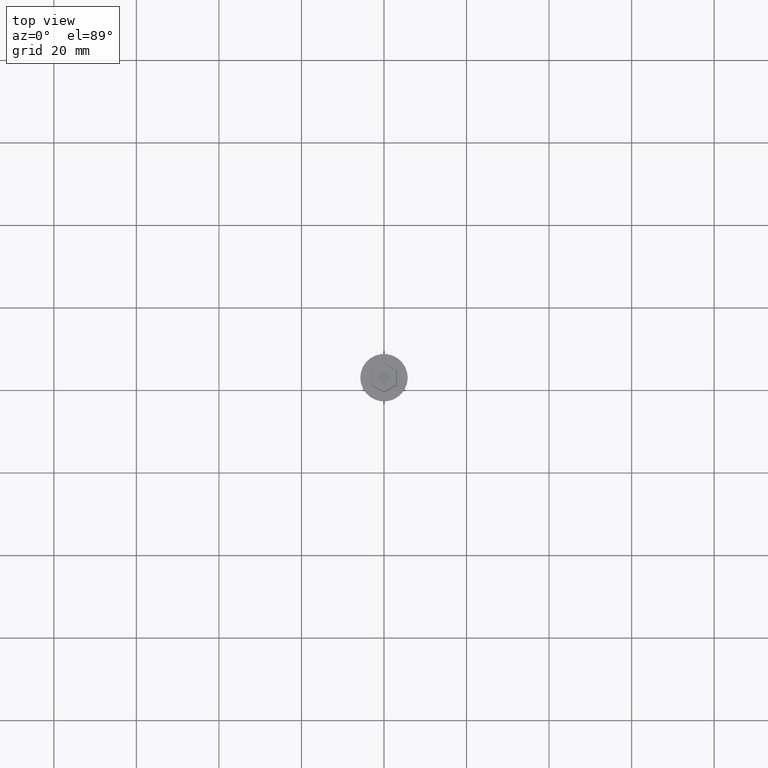
[diagram: clean part render]
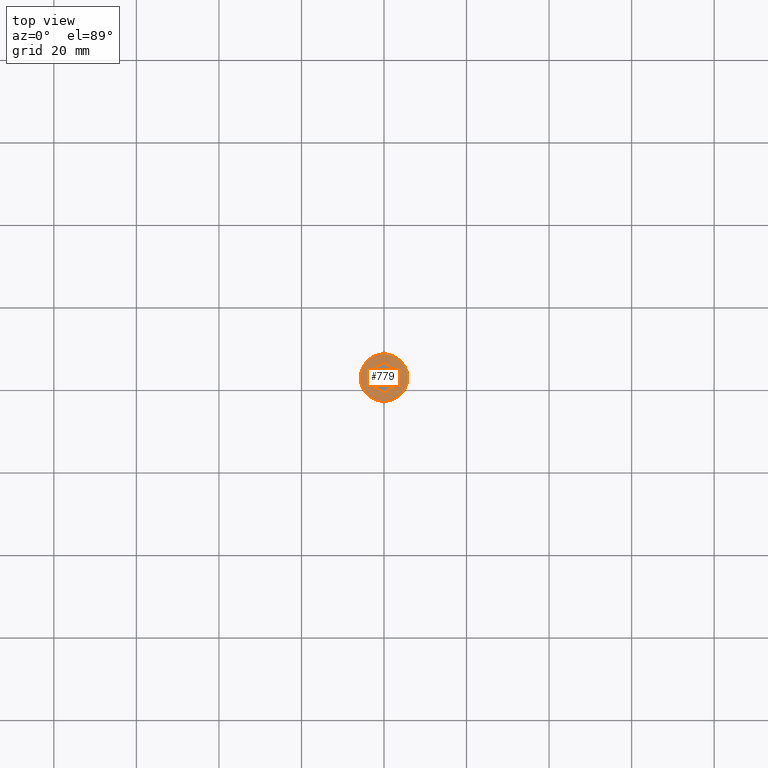
[diagram: same view with one face highlighted and labeled with its STEP entity id]
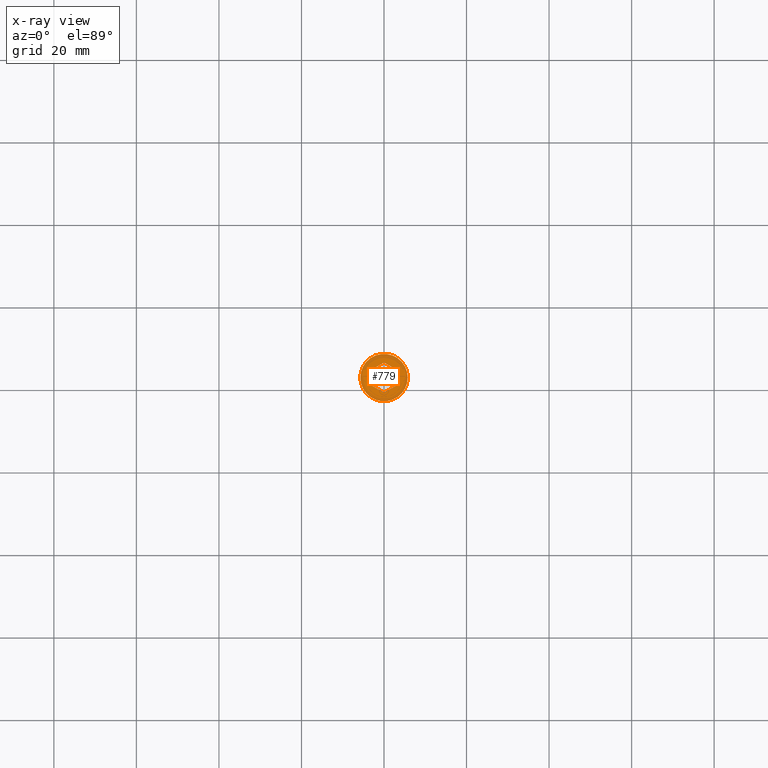
[diagram: x-ray of the same camera — body ghosted, the highlighted face saturated]
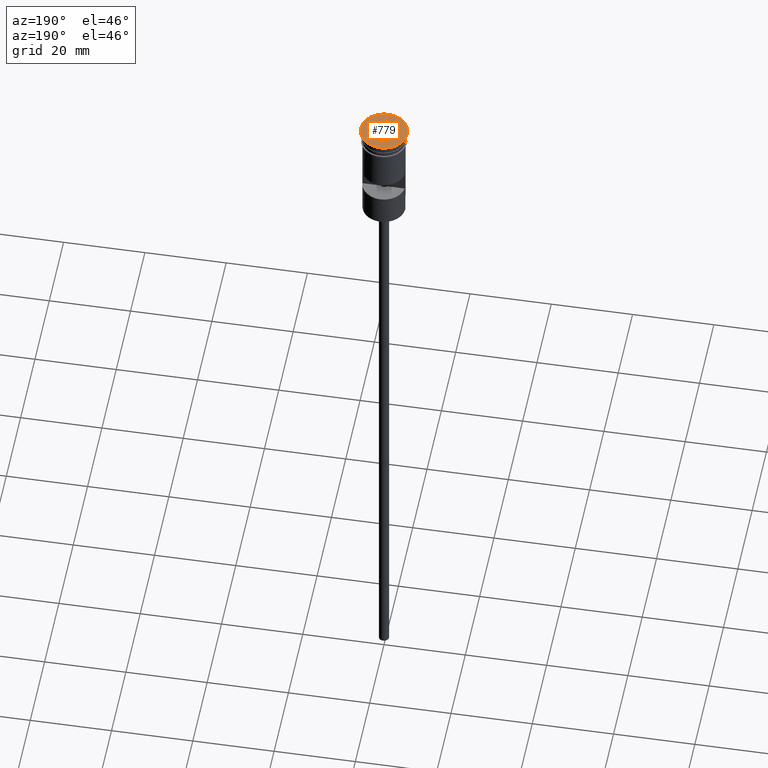
[diagram: same view with one face highlighted and labeled with its STEP entity id]
A machine part, top view. The second image highlights one B-rep face of the part: STEP entity #779.
The next image is the same camera in x-ray: the body ghosted, the highlighted face saturated — about 0% of this face is hidden behind the body in this view.
A second angle (auxiliary view) of the same face is appended — the face is thin or edge-on in the first view.
In plain terms, the highlighted planar face has unit normal (0, -0, 1).
Its self-contained STEP definition (entity closure, byte-faithful):
#32 = EDGE_CURVE ( 'NONE', #1575, #1348, #1456, .T. ) ;
#37 = LINE ( 'NONE', #1031, #1207 ) ;
#39 = CARTESIAN_POINT ( 'NONE',  ( -4.546348829811041408E-16, -3.637306695894617636, 0.000000000000000000 ) ) ;
#137 = CARTESIAN_POINT ( 'NONE',  ( -5.750000000000000000, 7.041719095097280880E-16, 0.000000000000000000 ) ) ;
#161 = VERTEX_POINT ( 'NONE', #137 ) ;
#164 = EDGE_CURVE ( 'NONE', #730, #161, #1368, .T. ) ;
#195 = EDGE_CURVE ( 'NONE', #161, #730, #300, .T. ) ;
#198 = CARTESIAN_POINT ( 'NONE',  ( 5.750000000000000000, 0.000000000000000000, 0.000000000000000000 ) ) ;
#238 = DIRECTION ( 'NONE',  ( 1.000000000000000000, 0.000000000000000000, 0.000000000000000000 ) ) ;
#247 = DIRECTION ( 'NONE',  ( 1.000000000000000000, 0.000000000000000000, 0.000000000000000000 ) ) ;
#257 = ORIENTED_EDGE ( 'NONE', *, *, #195, .T. ) ;
#280 = DIRECTION ( 'NONE',  ( -0.8660254037844385966, 0.5000000000000001110, 0.000000000000000000 ) ) ;
#300 = CIRCLE ( 'NONE', #628, 5.750000000000000000 ) ;
#306 = EDGE_CURVE ( 'NONE', #382, #1575, #641, .T. ) ;
#323 = EDGE_LOOP ( 'NONE', ( #1555, #257 ) ) ;
#326 = ORIENTED_EDGE ( 'NONE', *, *, #1178, .T. ) ;
#375 = VECTOR ( 'NONE', #514, 1000.000000000000000 ) ;
#382 = VERTEX_POINT ( 'NONE', #39 ) ;
#386 = EDGE_CURVE ( 'NONE', #1348, #969, #1053, .T. ) ;
#441 = EDGE_CURVE ( 'NONE', #843, #382, #474, .T. ) ;
#474 = LINE ( 'NONE', #1428, #1418 ) ;
#514 = DIRECTION ( 'NONE',  ( 0.000000000000000000, 1.000000000000000000, 0.000000000000000000 ) ) ;
#527 = EDGE_LOOP ( 'NONE', ( #1052, #1340, #994, #326, #648, #723 ) ) ;
#532 = AXIS2_PLACEMENT_3D ( 'NONE', #838, #1569, #238 ) ;
#628 = AXIS2_PLACEMENT_3D ( 'NONE', #1097, #844, #247 ) ;
#641 = LINE ( 'NONE', #1304, #1083 ) ;
#648 = ORIENTED_EDGE ( 'NONE', *, *, #1202, .T. ) ;
#660 = CARTESIAN_POINT ( 'NONE',  ( -3.149999999999978595, -1.818653347947308818, 0.000000000000000000 ) ) ;
#669 = DIRECTION ( 'NONE',  ( 0.000000000000000000, -0.000000000000000000, 1.000000000000000000 ) ) ;
#723 = ORIENTED_EDGE ( 'NONE', *, *, #441, .T. ) ;
#730 = VERTEX_POINT ( 'NONE', #198 ) ;
#776 = CARTESIAN_POINT ( 'NONE',  ( -3.095704393061636416E-16, 3.637306695894617192, 0.000000000000000000 ) ) ;
#779 = ADVANCED_FACE ( 'NONE', ( #1392, #1543 ), #895, .T. ) ;
#783 = DIRECTION ( 'NONE',  ( -2.546295930062981593E-16, -1.000000000000000000, 0.000000000000000000 ) ) ;
#810 = LINE ( 'NONE', #1048, #1565 ) ;
#834 = CARTESIAN_POINT ( 'NONE',  ( -3.149999999999978595, 1.818653347947308374, 0.000000000000000000 ) ) ;
#838 = CARTESIAN_POINT ( 'NONE',  ( 0.000000000000000000, 0.000000000000000000, 0.000000000000000000 ) ) ;
#843 = VERTEX_POINT ( 'NONE', #1443 ) ;
#844 = DIRECTION ( 'NONE',  ( -0.000000000000000000, -0.000000000000000000, 1.000000000000000000 ) ) ;
#895 = PLANE ( 'NONE',  #1133 ) ;
#910 = CARTESIAN_POINT ( 'NONE',  ( 0.000000000000000000, 0.000000000000000000, 0.000000000000000000 ) ) ;
#969 = VERTEX_POINT ( 'NONE', #776 ) ;
#990 = CARTESIAN_POINT ( 'NONE',  ( -3.149999999999978595, 1.703183294109395840, 0.000000000000000000 ) ) ;
#994 = ORIENTED_EDGE ( 'NONE', *, *, #386, .T. ) ;
#1031 = CARTESIAN_POINT ( 'NONE',  ( 3.149999999999978151, -1.703183294109396284, 0.000000000000000000 ) ) ;
#1034 = DIRECTION ( 'NONE',  ( 0.8660254037844385966, 0.5000000000000001110, 0.000000000000000000 ) ) ;
#1048 = CARTESIAN_POINT ( 'NONE',  ( 3.049999999999990052, 1.876388374866264863, 0.000000000000000000 ) ) ;
#1052 = ORIENTED_EDGE ( 'NONE', *, *, #306, .T. ) ;
#1053 = LINE ( 'NONE', #1535, #1163 ) ;
#1083 = VECTOR ( 'NONE', #280, 1000.000000000000114 ) ;
#1097 = CARTESIAN_POINT ( 'NONE',  ( 0.000000000000000000, 0.000000000000000000, 0.000000000000000000 ) ) ;
#1133 = AXIS2_PLACEMENT_3D ( 'NONE', #910, #669, #1149 ) ;
#1142 = VERTEX_POINT ( 'NONE', #1166 ) ;
#1149 = DIRECTION ( 'NONE',  ( 1.000000000000000000, 0.000000000000000000, 0.000000000000000000 ) ) ;
#1163 = VECTOR ( 'NONE', #1034, 1000.000000000000114 ) ;
#1166 = CARTESIAN_POINT ( 'NONE',  ( 3.149999999999979039, 1.818653347947308596, 0.000000000000000000 ) ) ;
#1178 = EDGE_CURVE ( 'NONE', #969, #1142, #810, .T. ) ;
#1202 = EDGE_CURVE ( 'NONE', #1142, #843, #37, .T. ) ;
#1207 = VECTOR ( 'NONE', #783, 1000.000000000000000 ) ;
#1294 = DIRECTION ( 'NONE',  ( 0.8660254037844387076, -0.4999999999999998890, 0.000000000000000000 ) ) ;
#1304 = CARTESIAN_POINT ( 'NONE',  ( -3.049999999999989608, -1.876388374866265085, 0.000000000000000000 ) ) ;
#1340 = ORIENTED_EDGE ( 'NONE', *, *, #32, .T. ) ;
#1348 = VERTEX_POINT ( 'NONE', #834 ) ;
#1368 = CIRCLE ( 'NONE', #532, 5.750000000000000000 ) ;
#1392 = FACE_BOUND ( 'NONE', #527, .T. ) ;
#1418 = VECTOR ( 'NONE', #1434, 1000.000000000000000 ) ;
#1428 = CARTESIAN_POINT ( 'NONE',  ( 0.09999999999998882005, -3.579571668975661591, 0.000000000000000000 ) ) ;
#1434 = DIRECTION ( 'NONE',  ( -0.8660254037844387076, -0.4999999999999998890, 0.000000000000000000 ) ) ;
#1443 = CARTESIAN_POINT ( 'NONE',  ( 3.149999999999978151, -1.818653347947309484, 0.000000000000000000 ) ) ;
#1456 = LINE ( 'NONE', #990, #375 ) ;
#1535 = CARTESIAN_POINT ( 'NONE',  ( -0.09999999999998934741, 3.579571668975661147, 0.000000000000000000 ) ) ;
#1543 = FACE_OUTER_BOUND ( 'NONE', #323, .T. ) ;
#1555 = ORIENTED_EDGE ( 'NONE', *, *, #164, .T. ) ;
#1565 = VECTOR ( 'NONE', #1294, 1000.000000000000000 ) ;
#1569 = DIRECTION ( 'NONE',  ( -0.000000000000000000, -0.000000000000000000, 1.000000000000000000 ) ) ;
#1575 = VERTEX_POINT ( 'NONE', #660 ) ;